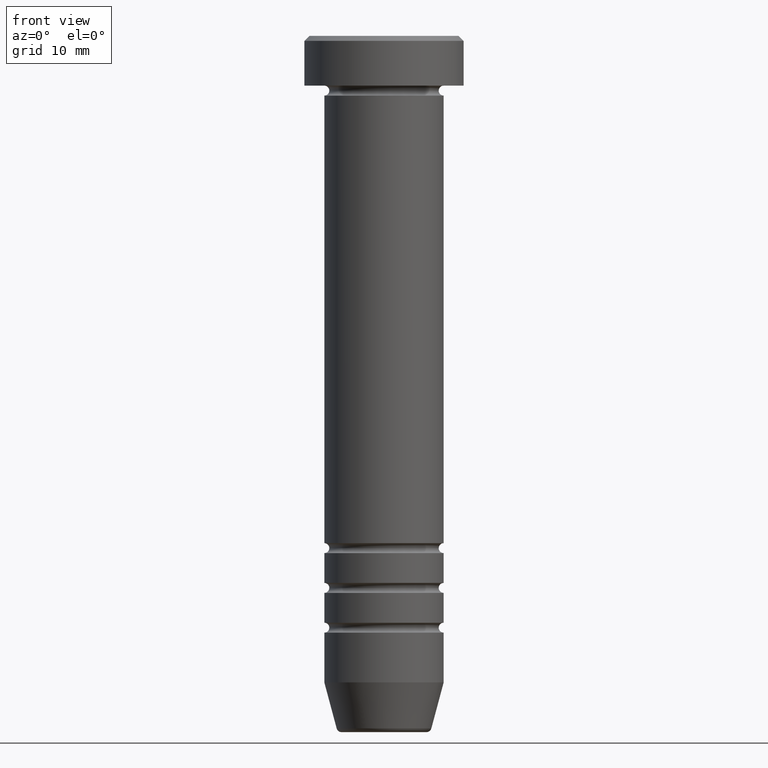
[diagram: clean part render]
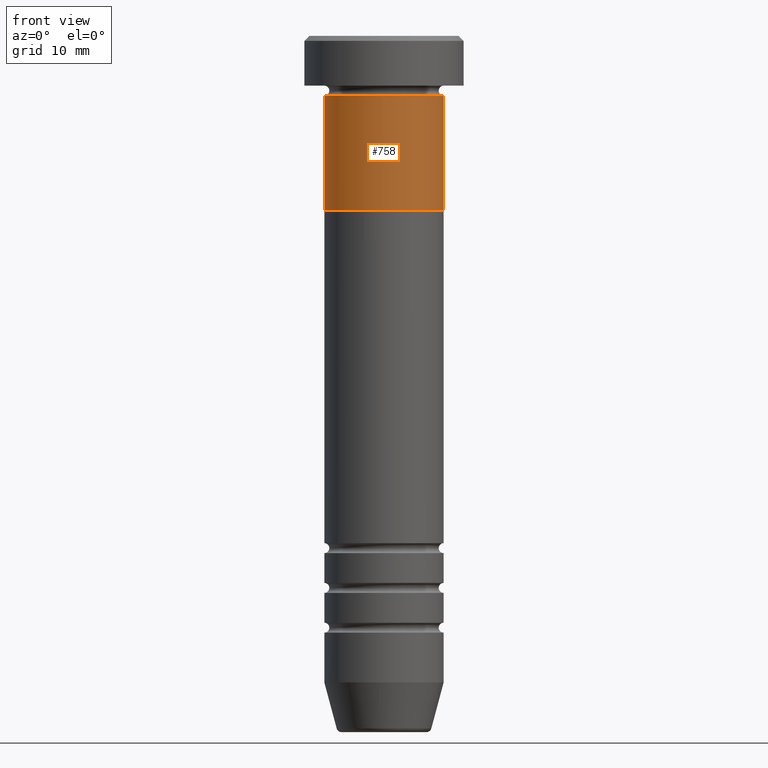
[diagram: same view with one face highlighted and labeled with its STEP entity id]
A machine part, front view. The second image highlights one B-rep face of the part: STEP entity #758.
In plain terms, the highlighted cylindrical surface (partial cylindrical patch) has radius 6 mm, axis along (-0, -0, 1).
Its self-contained STEP definition (entity closure, byte-faithful):
#35 = DIRECTION ( 'NONE',  ( 1.000000000000000000, 0.000000000000000000, 0.000000000000000000 ) ) ;
#51 = VECTOR ( 'NONE', #616, 1000.000000000000000 ) ;
#63 = CARTESIAN_POINT ( 'NONE',  ( 0.000000000000000000, 0.000000000000000000, 0.000000000000000000 ) ) ;
#104 = AXIS2_PLACEMENT_3D ( 'NONE', #907, #450, #35 ) ;
#133 = FACE_OUTER_BOUND ( 'NONE', #276, .T. ) ;
#138 = ORIENTED_EDGE ( 'NONE', *, *, #449, .T. ) ;
#234 = CARTESIAN_POINT ( 'NONE',  ( -6.000000000000000000, 7.347880794884119736E-16, -17.50000000000000000 ) ) ;
#276 = EDGE_LOOP ( 'NONE', ( #338, #138, #688, #486 ) ) ;
#283 = VERTEX_POINT ( 'NONE', #589 ) ;
#285 = EDGE_CURVE ( 'NONE', #566, #348, #667, .T. ) ;
#338 = ORIENTED_EDGE ( 'NONE', *, *, #362, .F. ) ;
#345 = CARTESIAN_POINT ( 'NONE',  ( 6.000000000000000000, 0.000000000000000000, -6.000000000000001776 ) ) ;
#348 = VERTEX_POINT ( 'NONE', #345 ) ;
#362 = EDGE_CURVE ( 'NONE', #1019, #566, #515, .T. ) ;
#449 = EDGE_CURVE ( 'NONE', #1019, #283, #781, .T. ) ;
#450 = DIRECTION ( 'NONE',  ( -0.000000000000000000, -0.000000000000000000, 1.000000000000000000 ) ) ;
#468 = DIRECTION ( 'NONE',  ( -0.000000000000000000, -0.000000000000000000, 1.000000000000000000 ) ) ;
#482 = CARTESIAN_POINT ( 'NONE',  ( 0.000000000000000000, 0.000000000000000000, -17.50000000000000000 ) ) ;
#486 = ORIENTED_EDGE ( 'NONE', *, *, #285, .F. ) ;
#495 = CARTESIAN_POINT ( 'NONE',  ( -6.000000000000000000, 7.347880794884119736E-16, -6.000000000000001776 ) ) ;
#515 = LINE ( 'NONE', #775, #51 ) ;
#546 = CYLINDRICAL_SURFACE ( 'NONE', #1048, 6.000000000000000000 ) ;
#564 = DIRECTION ( 'NONE',  ( -0.000000000000000000, -0.000000000000000000, 1.000000000000000000 ) ) ;
#566 = VERTEX_POINT ( 'NONE', #495 ) ;
#589 = CARTESIAN_POINT ( 'NONE',  ( 6.000000000000000000, 0.000000000000000000, -17.50000000000000000 ) ) ;
#616 = DIRECTION ( 'NONE',  ( -0.000000000000000000, -0.000000000000000000, 1.000000000000000000 ) ) ;
#620 = DIRECTION ( 'NONE',  ( 1.000000000000000000, 0.000000000000000000, 0.000000000000000000 ) ) ;
#624 = AXIS2_PLACEMENT_3D ( 'NONE', #482, #564, #620 ) ;
#647 = CARTESIAN_POINT ( 'NONE',  ( 6.000000000000000000, 0.000000000000000000, 0.000000000000000000 ) ) ;
#667 = CIRCLE ( 'NONE', #104, 6.000000000000000000 ) ;
#688 = ORIENTED_EDGE ( 'NONE', *, *, #822, .T. ) ;
#709 = DIRECTION ( 'NONE',  ( -0.000000000000000000, -0.000000000000000000, 1.000000000000000000 ) ) ;
#758 = ADVANCED_FACE ( 'NONE', ( #133 ), #546, .T. ) ;
#775 = CARTESIAN_POINT ( 'NONE',  ( -6.000000000000000000, 7.347880794884119736E-16, 0.000000000000000000 ) ) ;
#781 = CIRCLE ( 'NONE', #624, 6.000000000000000000 ) ;
#796 = LINE ( 'NONE', #647, #849 ) ;
#822 = EDGE_CURVE ( 'NONE', #283, #348, #796, .T. ) ;
#849 = VECTOR ( 'NONE', #709, 1000.000000000000000 ) ;
#868 = DIRECTION ( 'NONE',  ( 1.000000000000000000, 0.000000000000000000, 0.000000000000000000 ) ) ;
#907 = CARTESIAN_POINT ( 'NONE',  ( 0.000000000000000000, 0.000000000000000000, -6.000000000000001776 ) ) ;
#1019 = VERTEX_POINT ( 'NONE', #234 ) ;
#1048 = AXIS2_PLACEMENT_3D ( 'NONE', #63, #468, #868 ) ;